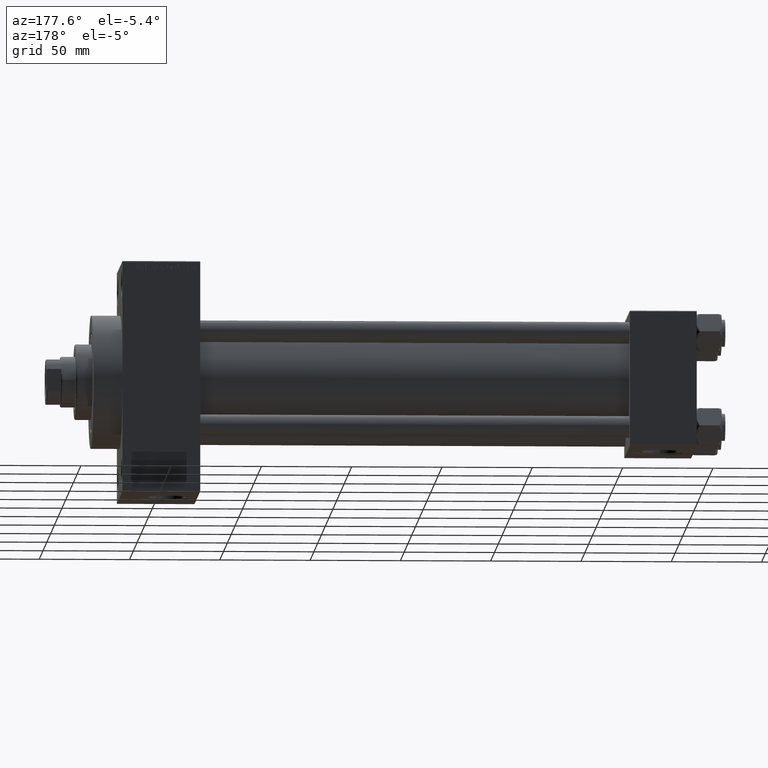
[diagram: clean part render]
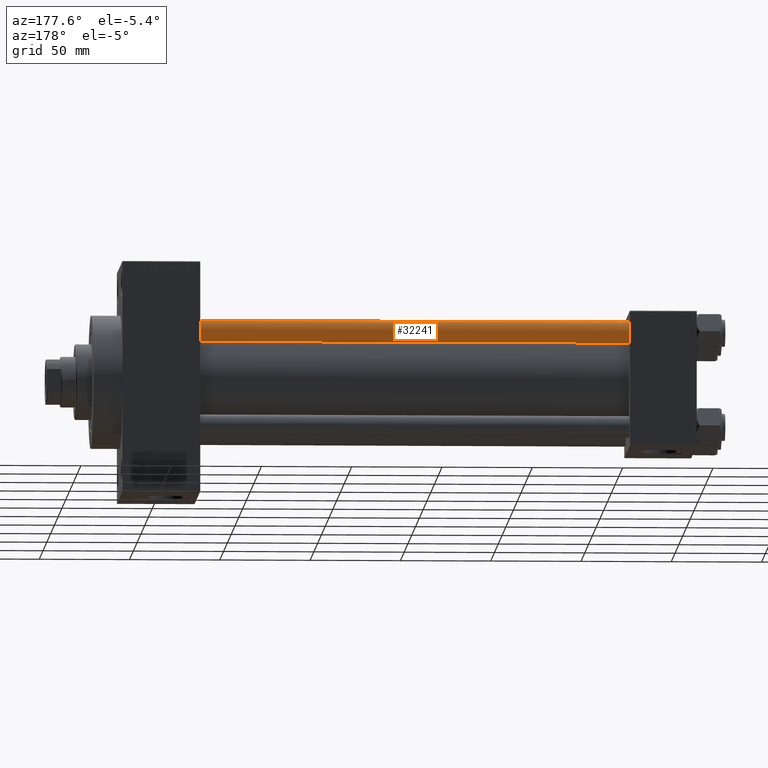
[diagram: same view with one face highlighted and labeled with its STEP entity id]
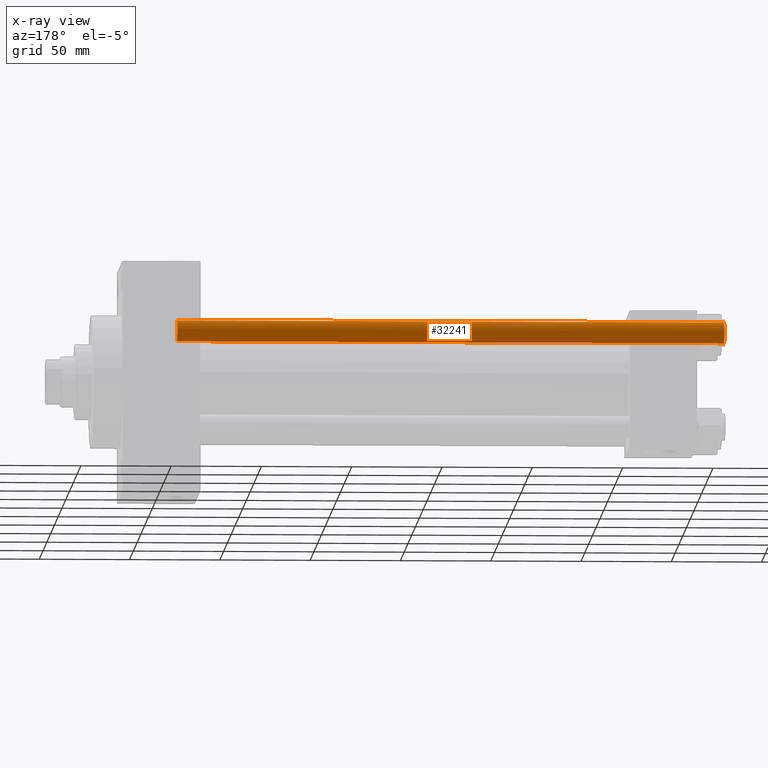
[diagram: x-ray of the same camera — body ghosted, the highlighted face saturated]
A machine part, auxiliary view. The second image highlights one B-rep face of the part: STEP entity #32241.
The next image is the same camera in x-ray: the body ghosted, the highlighted face saturated — about 0% of this face is hidden behind the body in this view.
In plain terms, the highlighted cylindrical surface (edge-blend (fillet) strip) has radius 6 mm, axis along (-1, -0, 0).
Its self-contained STEP definition (entity closure, byte-faithful):
#657 = AXIS2_PLACEMENT_3D ( 'NONE', #37585, #18118, #29134 ) ;
#2504 = FACE_OUTER_BOUND ( 'NONE', #6739, .T. ) ;
#3654 = DIRECTION ( 'NONE',  ( 1.000000000000000000, 0.000000000000000000, 0.000000000000000000 ) ) ;
#4289 = EDGE_CURVE ( 'NONE', #7121, #8155, #31587, .T. ) ;
#6739 = EDGE_LOOP ( 'NONE', ( #43879, #10469, #28497, #43720 ) ) ;
#7121 = VERTEX_POINT ( 'NONE', #15138 ) ;
#8155 = VERTEX_POINT ( 'NONE', #21409 ) ;
#9561 = LINE ( 'NONE', #49297, #25657 ) ;
#10469 = ORIENTED_EDGE ( 'NONE', *, *, #48868, .T. ) ;
#12284 = CARTESIAN_POINT ( 'NONE',  ( 0.000000000000000000, 0.000000000000000000, 303.5000000000000000 ) ) ;
#15138 = CARTESIAN_POINT ( 'NONE',  ( -6.000000000000000888, 0.000000000000000000, 303.5000000000000000 ) ) ;
#16327 = CIRCLE ( 'NONE', #25300, 6.000000000000000888 ) ;
#17089 = VECTOR ( 'NONE', #24142, 1000.000000000000000 ) ;
#18118 = DIRECTION ( 'NONE',  ( -0.000000000000000000, -0.000000000000000000, -1.000000000000000000 ) ) ;
#19051 = VERTEX_POINT ( 'NONE', #35701 ) ;
#21409 = CARTESIAN_POINT ( 'NONE',  ( -6.000000000000000888, 0.000000000000000000, 0.4999999999999449329 ) ) ;
#24060 = DIRECTION ( 'NONE',  ( 1.000000000000000000, 0.000000000000000000, 0.000000000000000000 ) ) ;
#24142 = DIRECTION ( 'NONE',  ( -0.000000000000000000, -0.000000000000000000, -1.000000000000000000 ) ) ;
#25143 = VERTEX_POINT ( 'NONE', #50547 ) ;
#25300 = AXIS2_PLACEMENT_3D ( 'NONE', #39527, #35409, #3654 ) ;
#25657 = VECTOR ( 'NONE', #44931, 1000.000000000000000 ) ;
#27904 = DIRECTION ( 'NONE',  ( 0.000000000000000000, 0.000000000000000000, -1.000000000000000000 ) ) ;
#28497 = ORIENTED_EDGE ( 'NONE', *, *, #36147, .T. ) ;
#29134 = DIRECTION ( 'NONE',  ( -1.000000000000000000, 0.000000000000000000, 0.000000000000000000 ) ) ;
#31587 = LINE ( 'NONE', #31834, #17089 ) ;
#31834 = CARTESIAN_POINT ( 'NONE',  ( -6.000000000000000888, 0.000000000000000000, 304.0000000000000000 ) ) ;
#32241 = ADVANCED_FACE ( 'NONE', ( #2504 ), #44536, .T. ) ;
#33468 = AXIS2_PLACEMENT_3D ( 'NONE', #12284, #27904, #24060 ) ;
#35409 = DIRECTION ( 'NONE',  ( -0.000000000000000000, -0.000000000000000000, 1.000000000000000000 ) ) ;
#35701 = CARTESIAN_POINT ( 'NONE',  ( 6.000000000000000888, 7.347880794884120722E-16, 0.4999999999999449329 ) ) ;
#36147 = EDGE_CURVE ( 'NONE', #19051, #8155, #16327, .T. ) ;
#36675 = EDGE_CURVE ( 'NONE', #7121, #25143, #46593, .T. ) ;
#37585 = CARTESIAN_POINT ( 'NONE',  ( 0.000000000000000000, 0.000000000000000000, 304.0000000000000000 ) ) ;
#39527 = CARTESIAN_POINT ( 'NONE',  ( 0.000000000000000000, 0.000000000000000000, 0.4999999999999449329 ) ) ;
#43720 = ORIENTED_EDGE ( 'NONE', *, *, #4289, .F. ) ;
#43879 = ORIENTED_EDGE ( 'NONE', *, *, #36675, .T. ) ;
#44536 = CYLINDRICAL_SURFACE ( 'NONE', #657, 6.000000000000000888 ) ;
#44931 = DIRECTION ( 'NONE',  ( -0.000000000000000000, -0.000000000000000000, -1.000000000000000000 ) ) ;
#46593 = CIRCLE ( 'NONE', #33468, 6.000000000000000888 ) ;
#48868 = EDGE_CURVE ( 'NONE', #25143, #19051, #9561, .T. ) ;
#49297 = CARTESIAN_POINT ( 'NONE',  ( 6.000000000000000888, 7.347880794884120722E-16, 304.0000000000000000 ) ) ;
#50547 = CARTESIAN_POINT ( 'NONE',  ( 6.000000000000000888, 7.347880794884120722E-16, 303.5000000000000000 ) ) ;